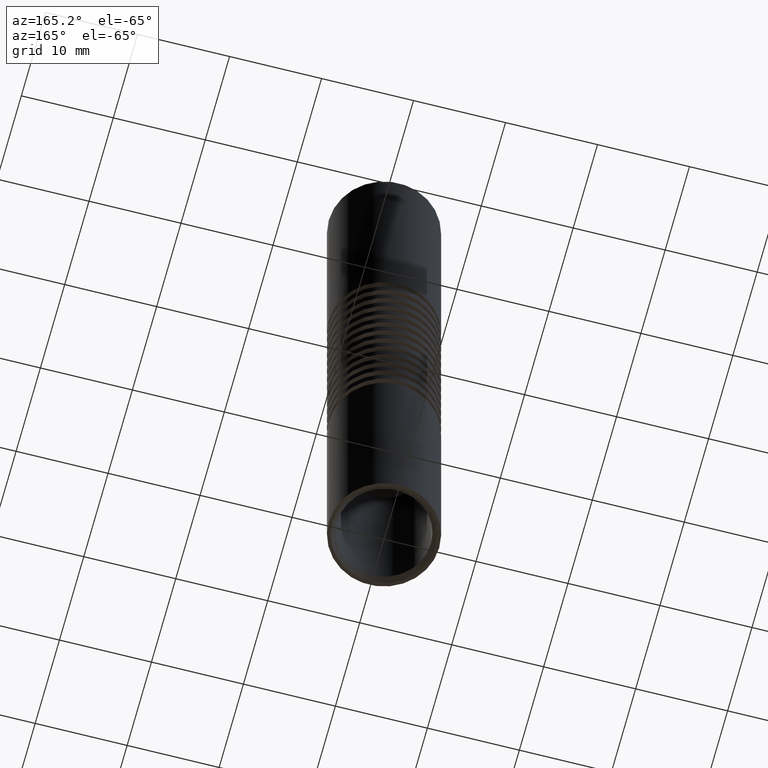
[diagram: clean part render]
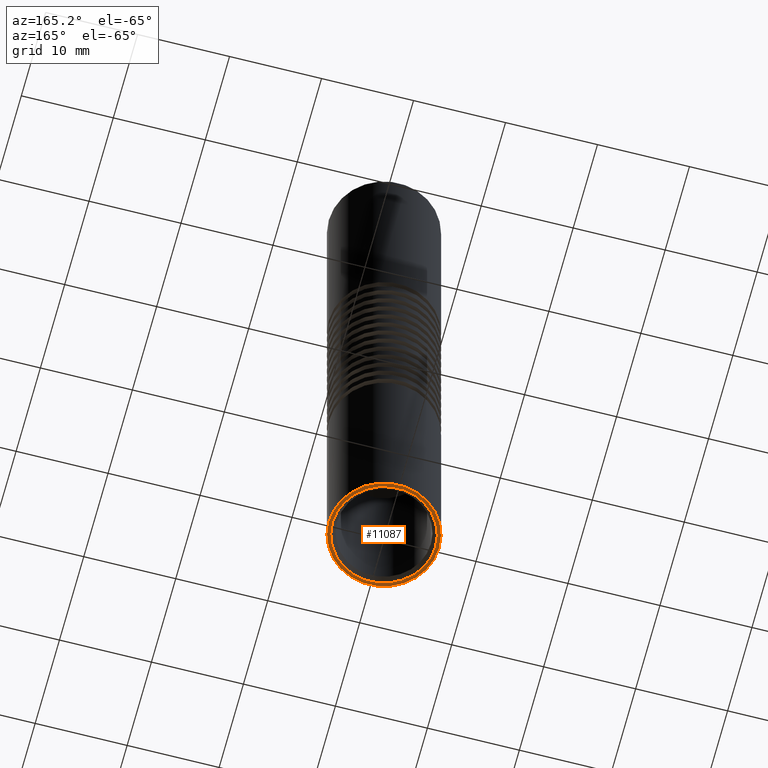
[diagram: same view with one face highlighted and labeled with its STEP entity id]
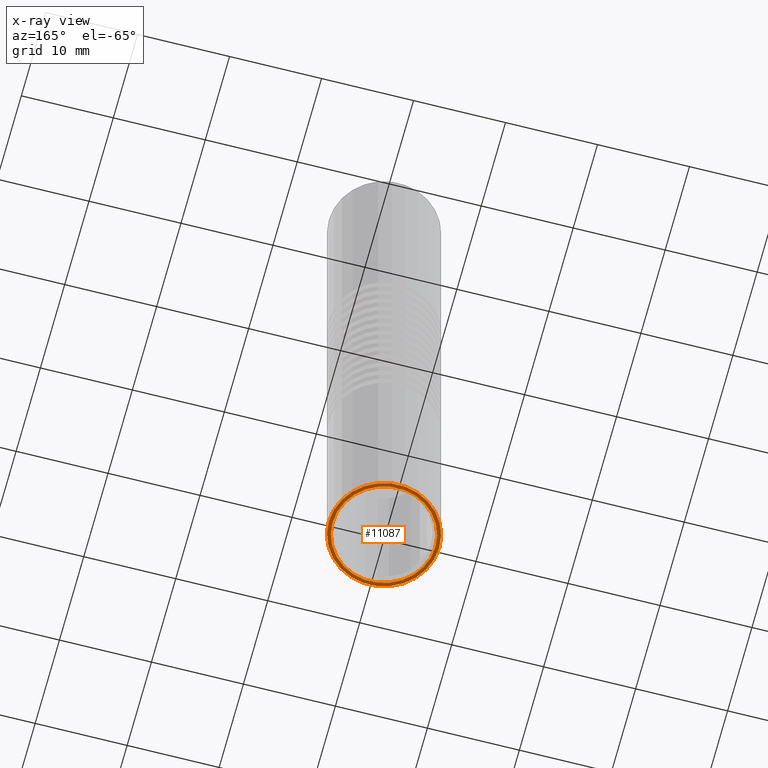
[diagram: x-ray of the same camera — body ghosted, the highlighted face saturated]
A machine part, auxiliary view. The second image highlights one B-rep face of the part: STEP entity #11087.
The next image is the same camera in x-ray: the body ghosted, the highlighted face saturated — about 0% of this face is hidden behind the body in this view.
In plain terms, the highlighted planar face has unit normal (0, -0, 1).
Its self-contained STEP definition (entity closure, byte-faithful):
#934 = CIRCLE ( 'NONE', #13463, 6.000000000000005329 ) ;
#1020 = CARTESIAN_POINT ( 'NONE',  ( 6.000000000000005329, 0.000000000000000000, -37.50000000000000000 ) ) ;
#1370 = DIRECTION ( 'NONE',  ( -0.000000000000000000, -0.000000000000000000, 1.000000000000000000 ) ) ;
#1391 = AXIS2_PLACEMENT_3D ( 'NONE', #1020, #10546, #8349 ) ;
#1570 = CIRCLE ( 'NONE', #11355, 5.600000000000007638 ) ;
#2067 = EDGE_LOOP ( 'NONE', ( #8220, #11189 ) ) ;
#2270 = DIRECTION ( 'NONE',  ( 0.000000000000000000, 0.000000000000000000, -1.000000000000000000 ) ) ;
#2893 = DIRECTION ( 'NONE',  ( -1.000000000000000000, 0.000000000000000000, 0.000000000000000000 ) ) ;
#3147 = EDGE_CURVE ( 'NONE', #11266, #3408, #934, .T. ) ;
#3408 = VERTEX_POINT ( 'NONE', #10947 ) ;
#3990 = FACE_OUTER_BOUND ( 'NONE', #9657, .T. ) ;
#4211 = VERTEX_POINT ( 'NONE', #12690 ) ;
#4276 = FACE_BOUND ( 'NONE', #2067, .T. ) ;
#4445 = AXIS2_PLACEMENT_3D ( 'NONE', #9171, #6173, #2893 ) ;
#4688 = CARTESIAN_POINT ( 'NONE',  ( -5.600000000000007638, 0.000000000000000000, -37.50000000000000000 ) ) ;
#5082 = CIRCLE ( 'NONE', #4445, 6.000000000000005329 ) ;
#6173 = DIRECTION ( 'NONE',  ( 0.000000000000000000, 0.000000000000000000, -1.000000000000000000 ) ) ;
#6679 = ORIENTED_EDGE ( 'NONE', *, *, #3147, .T. ) ;
#7283 = PLANE ( 'NONE',  #1391 ) ;
#7292 = AXIS2_PLACEMENT_3D ( 'NONE', #11765, #1370, #11723 ) ;
#7406 = CARTESIAN_POINT ( 'NONE',  ( 0.000000000000000000, 0.000000000000000000, -37.50000000000000000 ) ) ;
#7427 = DIRECTION ( 'NONE',  ( -0.000000000000000000, -0.000000000000000000, 1.000000000000000000 ) ) ;
#7545 = CIRCLE ( 'NONE', #7292, 5.600000000000007638 ) ;
#8220 = ORIENTED_EDGE ( 'NONE', *, *, #13363, .T. ) ;
#8349 = DIRECTION ( 'NONE',  ( -1.000000000000000000, 0.000000000000000000, 0.000000000000000000 ) ) ;
#8366 = CARTESIAN_POINT ( 'NONE',  ( 0.000000000000000000, 0.000000000000000000, -37.50000000000000000 ) ) ;
#8846 = EDGE_CURVE ( 'NONE', #4211, #13429, #1570, .T. ) ;
#9171 = CARTESIAN_POINT ( 'NONE',  ( 0.000000000000000000, 0.000000000000000000, -37.50000000000000000 ) ) ;
#9433 = DIRECTION ( 'NONE',  ( 1.000000000000000000, 0.000000000000000000, 0.000000000000000000 ) ) ;
#9657 = EDGE_LOOP ( 'NONE', ( #11278, #6679 ) ) ;
#10019 = CARTESIAN_POINT ( 'NONE',  ( 6.000000000000005329, -7.347880794884124666E-16, -37.50000000000000000 ) ) ;
#10546 = DIRECTION ( 'NONE',  ( 0.000000000000000000, -0.000000000000000000, 1.000000000000000000 ) ) ;
#10947 = CARTESIAN_POINT ( 'NONE',  ( -6.000000000000005329, 0.000000000000000000, -37.50000000000000000 ) ) ;
#11087 = ADVANCED_FACE ( 'NONE', ( #4276, #3990 ), #7283, .F. ) ;
#11189 = ORIENTED_EDGE ( 'NONE', *, *, #8846, .T. ) ;
#11266 = VERTEX_POINT ( 'NONE', #10019 ) ;
#11278 = ORIENTED_EDGE ( 'NONE', *, *, #13167, .T. ) ;
#11355 = AXIS2_PLACEMENT_3D ( 'NONE', #8366, #7427, #9433 ) ;
#11723 = DIRECTION ( 'NONE',  ( 1.000000000000000000, 0.000000000000000000, 0.000000000000000000 ) ) ;
#11765 = CARTESIAN_POINT ( 'NONE',  ( 0.000000000000000000, 0.000000000000000000, -37.50000000000000000 ) ) ;
#12598 = DIRECTION ( 'NONE',  ( -1.000000000000000000, 0.000000000000000000, 0.000000000000000000 ) ) ;
#12690 = CARTESIAN_POINT ( 'NONE',  ( 5.600000000000007638, 6.858022075225187427E-16, -37.50000000000000000 ) ) ;
#13167 = EDGE_CURVE ( 'NONE', #3408, #11266, #5082, .T. ) ;
#13363 = EDGE_CURVE ( 'NONE', #13429, #4211, #7545, .T. ) ;
#13429 = VERTEX_POINT ( 'NONE', #4688 ) ;
#13463 = AXIS2_PLACEMENT_3D ( 'NONE', #7406, #2270, #12598 ) ;